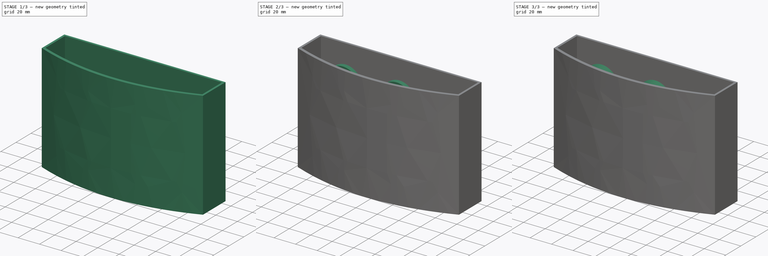
[diagram: build sequence overview — one tinted view per stage of 3, left to right]
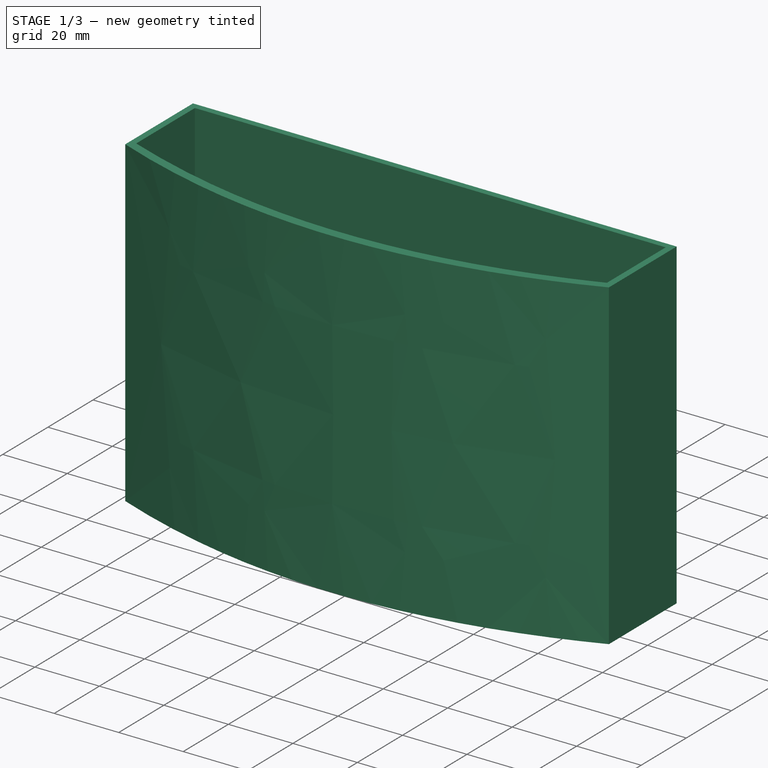
[diagram: stage 1 of 3 — iso view after this stage's code; geometry added in this stage tinted green]
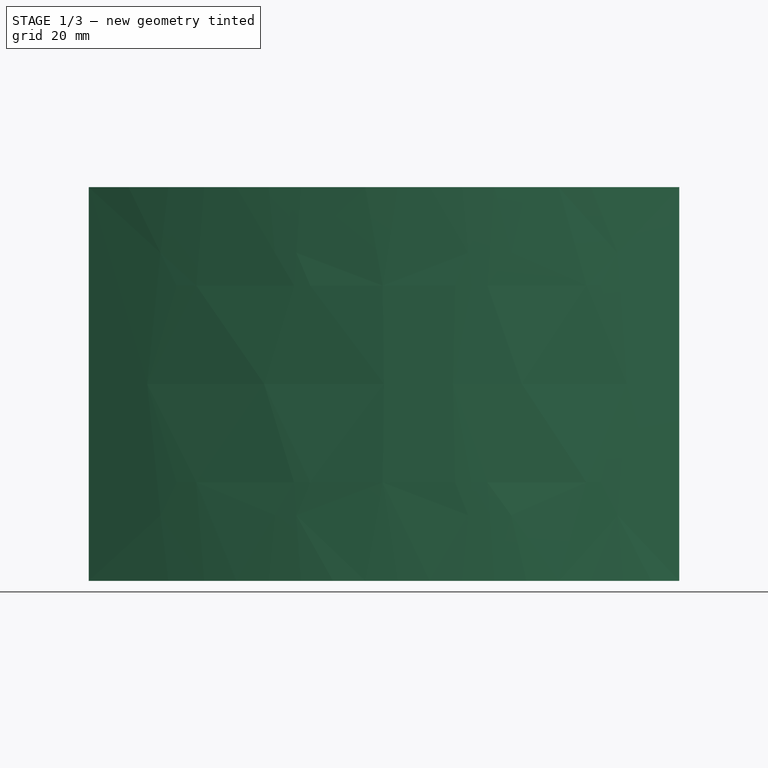
[diagram: stage 1 of 3 — front view after this stage's code; geometry added in this stage tinted green]
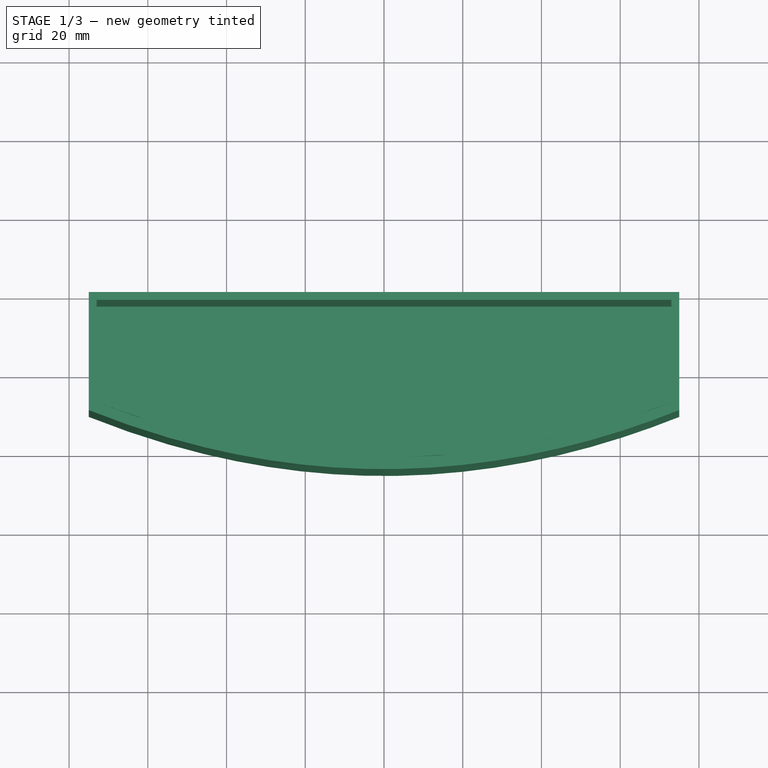
[diagram: stage 1 of 3 — top view after this stage's code; geometry added in this stage tinted green]
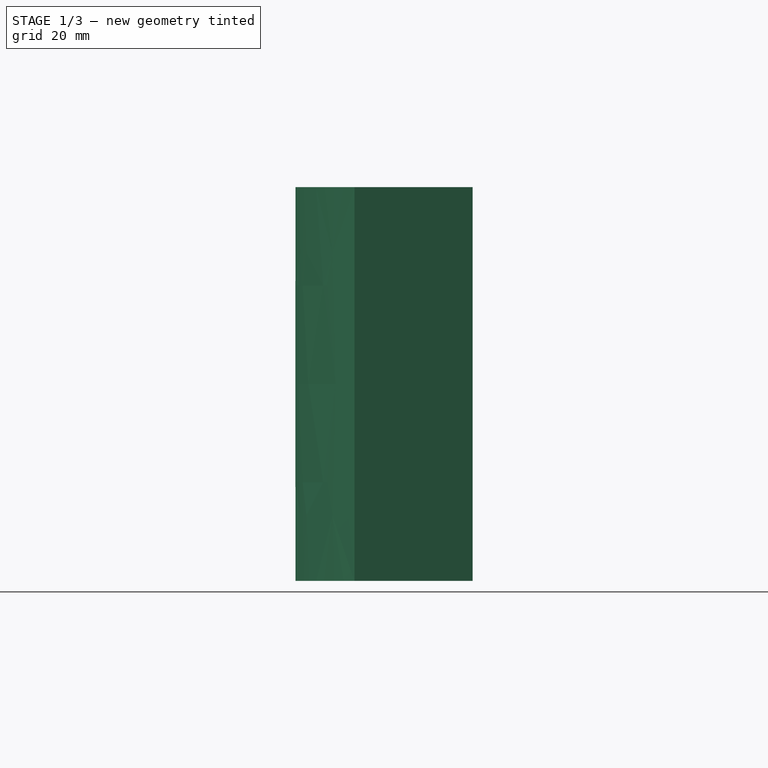
[diagram: stage 1 of 3 — right view after this stage's code; geometry added in this stage tinted green]
FCSTD DOCUMENT  (FreeCAD 2023.131R26244 +5365 (Git))
Label: Magnetic Sink Caddy
License: All rights reserved
LicenseURL: http://en.wikipedia.org/wiki/All_rights_reserved
objects: Sketcher::SketchObject×5, PartDesign::Pocket×3, PartDesign::Pad×2, Spreadsheet::Sheet×1, PartDesign::LinearPattern×1, PartDesign::Chamfer×1, PartDesign::Body×1
note: 32 computed .brp shape members not serialized (recipe doc carries the construction recipe); baked Part::Feature solids carry a one-line shape summary decoded from their .brp

FEATURE [Spreadsheet::Sheet] Spreadsheet  label="Parameters"
  PythonMode = false
  ShowCells = 0
  TreeRank = 1
  cells = A1=Overall Height; B1(Height)=100; A2=Overall Width; B2(Width)=150; A3=Side Wall Length; B3(Side_Length)=30; A4=Curve Focal Length; B4(Curve_Focal_Length)=60; A5=Wall Thickness; B5(Thickness)=2; A6=Bottom Hole Diameter; B6(Hole_Diameter)=4; A7=Magnet Diameter; B7(Magnet_Diameter)=15.5; A8=Magnet Thickness; B8(Magnet_Thickness)=2.2
FEATURE [Sketcher::SketchObject] Sketch  label="Body Sketch"
  ArcFitTolerance = 1e-06
  AttachmentSupport = -> [XY_Plane]
  ExternalBSplineMaxDegree = 5
  ExternalBSplineTolerance = 0.0001
  FullyConstrained = true
  InternalTolerance = 1e-06
  InvalidShape = false
  MakeInternals = false
  MapMode = 5
  Support = -> [XY_Plane]
  TreeRank = 12
  ValidateShape = true
  expr: Constraints[1] = <<Parameters>>.Width
  expr: Constraints[20] = <<Parameters>>.Curve_Focal_Length
  expr: Constraints[7] = <<Parameters>>.Side_Length
  sketch-geometry (9):
    g0: LineSegment StartX=-75 StartY=0 StartZ=0 EndX=75 EndY=0 EndZ=0
    g1: LineSegment StartX=-75 StartY=0 StartZ=0 EndX=-75 EndY=-30 EndZ=0
    g2: LineSegment StartX=75 StartY=0 StartZ=0 EndX=75 EndY=-30 EndZ=0
    g3: Circle [constr] CenterX=-75 CenterY=-30 CenterZ=0 NormalX=0 NormalY=0 NormalZ=1 AngleXU=0 Radius=1
    g4: Circle [constr] CenterX=0 CenterY=-60 CenterZ=0 NormalX=0 NormalY=0 NormalZ=1 AngleXU=0 Radius=1
    g5: Circle [constr] CenterX=75 CenterY=-30 CenterZ=0 NormalX=0 NormalY=0 NormalZ=1 AngleXU=0 Radius=1
    g6: BSplineCurve PolesCount=3 KnotsCount=2 Degree=2 IsPeriodic=0
    g7: GeomPoint [constr] X=-75 Y=-30 Z=0
    g8: GeomPoint [constr] X=75 Y=-30 Z=0
  constraints (21):
    c: PointOnObject(g0,g-1)
    c: Distance(g0) = 150
    c: Symmetric(g0,g0,g-1)
    c: Coincident(g1,g0)
    c: Vertical(g1)
    c: Coincident(g2,g0)
    c: Vertical(g2)
    c: Distance(g1) = 30
    c: Equal(g1,g2)
    c: Coincident(g6,g1)
    c: Weight(g3) = 1
    c: Equal(g3,g4)
    c: PointOnObject(g4,g-2)
    c: Equal(g3,g5)
    c: Coincident(g6,g2)
    c: InternalAlignment(g3,g6)
    c: InternalAlignment(g4,g6)
    c: InternalAlignment(g5,g6)
    c: InternalAlignment(g7,g6)
    c: InternalAlignment(g8,g6)
    c: DistanceY(g4,g-1) = 60
FEATURE [PartDesign::Pad] Pad  label="Body"
  AddSubType = 0
  AlongSketchNormal = false
  AutoTaperInnerAngle = true
  CheckUpToFaceLimits = true
  ClaimChildren = false
  Direction = (0,0,1)
  Fit = 0
  FitJoin = 0
  InnerFit = 0
  InnerFitJoin = 0
  InvalidShape = false
  Length = 100
  Length2 = 100
  Linearize = true
  NewSolid = false
  Profile = -> Sketch
  Suppress = false
  TaperInnerAngle = 0
  TaperInnerAngleRev = 0
  TreeRank = 13
  Type = 0
  ValidateShape = true
  _ProfileBasedVersion = 1
  expr: Length = <<Parameters>>.Height
FEATURE [Sketcher::SketchObject] Sketch001  label="Hollow Sketch"
  ArcFitTolerance = 1e-06
  AttachmentSupport = -> [Pad]
  ExternalBSplineMaxDegree = 5
  ExternalBSplineTolerance = 0.0001
  FullyConstrained = true
  InternalTolerance = 1e-06
  InvalidShape = false
  MakeInternals = false
  MapMode = 5
  Placement = pos=(0,0,100) rot=(0,0,1;0rad)
  Support = -> [Pad]
  TreeRank = 14
  ValidateShape = true
  expr: Constraints[0] = <<Parameters>>.Thickness
  expr: Constraints[1] = <<Parameters>>.Width - 2 * <<Parameters>>.Thickness
  expr: Constraints[20] = <<Parameters>>.Curve_Focal_Length - 2 * <<Parameters>>.Thickness
  expr: Constraints[8] = <<Parameters>>.Side_Length - 2 * <<Parameters>>.Thickness
  sketch-geometry (9):
    g0: LineSegment StartX=-73 StartY=-2 StartZ=0 EndX=73 EndY=-2 EndZ=0
    g1: LineSegment StartX=-73 StartY=-2 StartZ=0 EndX=-73 EndY=-28 EndZ=0
    g2: LineSegment StartX=73 StartY=-2 StartZ=0 EndX=73 EndY=-28 EndZ=0
    g3: Circle [constr] CenterX=-73 CenterY=-28 CenterZ=0 NormalX=0 NormalY=0 NormalZ=1 AngleXU=0 Radius=1
    g4: Circle [constr] CenterX=0 CenterY=-56 CenterZ=0 NormalX=0 NormalY=0 NormalZ=1 AngleXU=0 Radius=1
    g5: Circle [constr] CenterX=73 CenterY=-28 CenterZ=0 NormalX=0 NormalY=0 NormalZ=1 AngleXU=0 Radius=1
    g6: BSplineCurve PolesCount=3 KnotsCount=2 Degree=2 IsPeriodic=0
    g7: GeomPoint [constr] X=-73 Y=-28 Z=0
    g8: GeomPoint [constr] X=73 Y=-28 Z=0
  constraints (21):
    c: DistanceY(g0,g-1) = 2
    c: Distance(g0) = 146
    c: Symmetric(g0,g0,g-2)
    c: Coincident(g1,g0)
    c: Vertical(g1)
    c: Coincident(g2,g0)
    c: Vertical(g2)
    c: Equal(g1,g2)
    c: Distance(g1) = 26
    c: Coincident(g6,g1)
    c: Weight(g3) = 1
    c: Equal(g3,g4)
    c: PointOnObject(g4,g-2)
    c: Equal(g3,g5)
    c: Coincident(g6,g2)
    c: InternalAlignment(g3,g6)
    c: InternalAlignment(g4,g6)
    c: InternalAlignment(g5,g6)
    c: InternalAlignment(g7,g6)
    c: InternalAlignment(g8,g6)
    c: DistanceY(g4,g-1) = 56
FEATURE [PartDesign::Pocket] Pocket  label="Hollow"
  AddSubType = 1
  AutoTaperInnerAngle = true
  BaseFeature = -> Pad
  CheckUpToFaceLimits = true
  ClaimChildren = false
  Fit = 0
  FitJoin = 0
  InnerFit = 0
  InnerFitJoin = 0
  InvalidShape = false
  Length = 98
  Length2 = 100
  Linearize = true
  NewSolid = false
  Profile = -> Sketch001
  Suppress = false
  TaperInnerAngle = 0
  TaperInnerAngleRev = 0
  TreeRank = 15
  Type = 0
  ValidateShape = true
  _ProfileBasedVersion = 1
  _Version = 1
  expr: Length = <<Parameters>>.Height - <<Parameters>>.Thickness
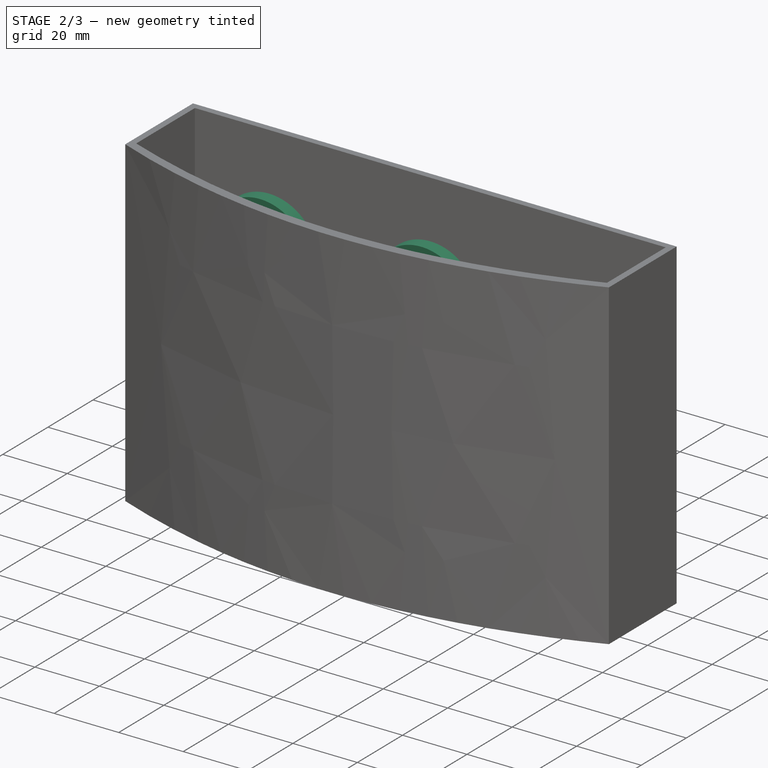
[diagram: stage 2 of 3 — iso view after this stage's code; geometry added in this stage tinted green]
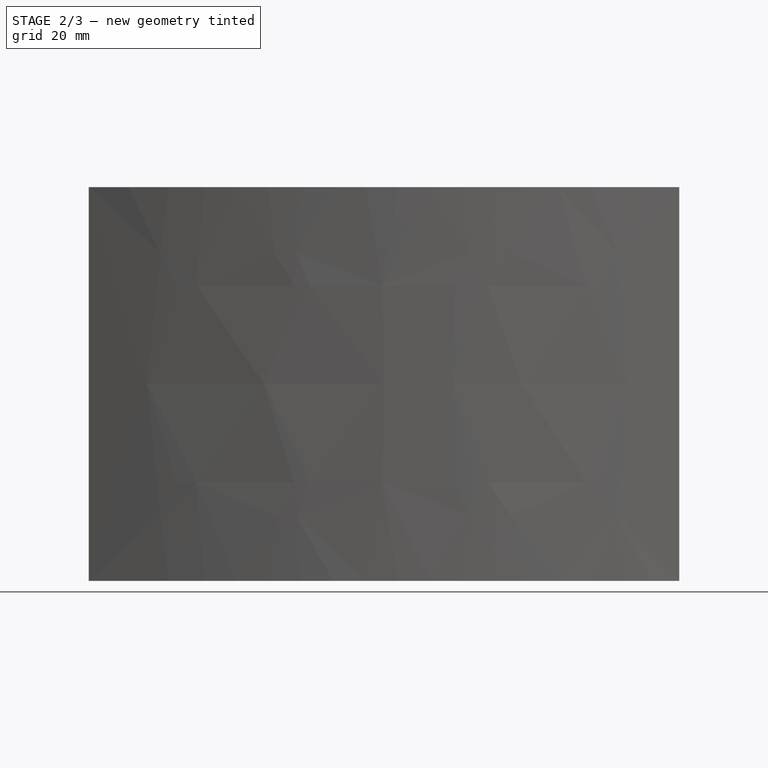
[diagram: stage 2 of 3 — front view after this stage's code; geometry added in this stage tinted green]
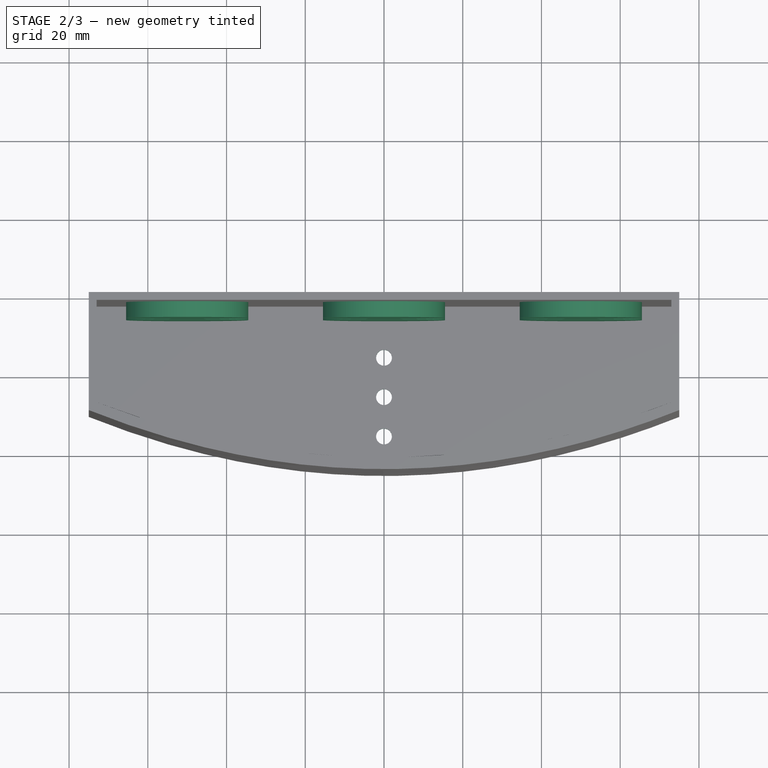
[diagram: stage 2 of 3 — top view after this stage's code; geometry added in this stage tinted green]
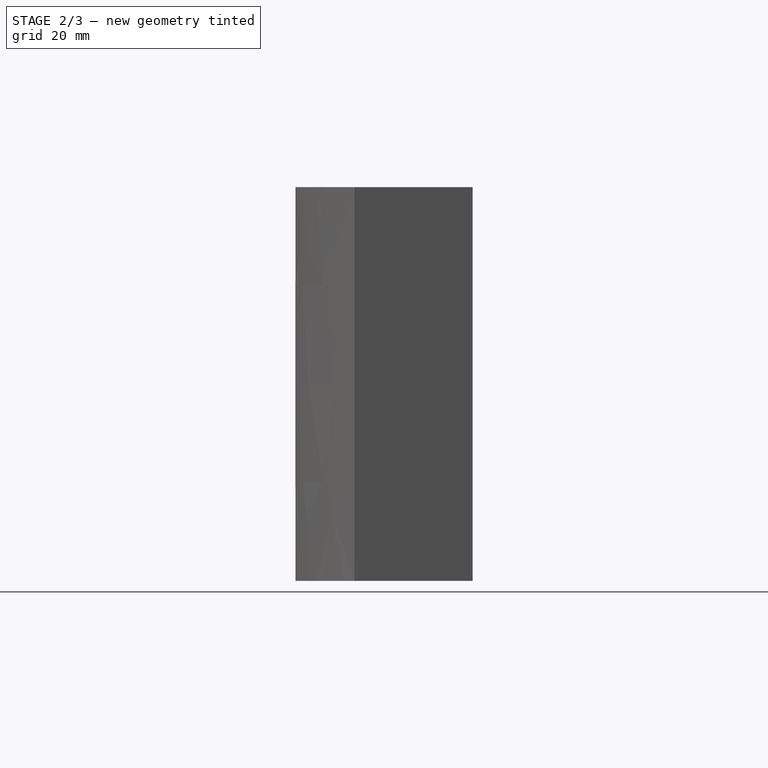
[diagram: stage 2 of 3 — right view after this stage's code; geometry added in this stage tinted green]
FEATURE [Sketcher::SketchObject] Sketch003  label="Magnet Supports Sketch"
  ArcFitTolerance = 1e-06
  ExternalBSplineMaxDegree = 5
  ExternalBSplineTolerance = 0.0001
  FullyConstrained = true
  InternalTolerance = 1e-06
  InvalidShape = false
  MakeInternals = false
  MapMode = 5
  Placement = pos=(0,-2,0) rot=(1,0,0;1.5708rad)
  TreeRank = 19
  ValidateShape = true
  expr: Constraints[10] = <<Parameters>>.Height / 3
  expr: Constraints[11] = <<Parameters>>.Height / 3
  expr: Constraints[12] = <<Parameters>>.Height / 3 * 2
  expr: Constraints[13] = <<Parameters>>.Height / 3 * 2
  expr: Constraints[14] = <<Parameters>>.Width / 3
  expr: Constraints[15] = <<Parameters>>.Width / 3
  expr: Constraints[16] = <<Parameters>>.Width / 3
  expr: Constraints[17] = <<Parameters>>.Width / 3
  expr: Constraints[1] = <<Parameters>>.Magnet_Diameter * 2
  expr: Constraints[8] = <<Parameters>>.Height / 3
  expr: Constraints[9] = <<Parameters>>.Height / 3 * 2
  sketch-geometry (6):
    g0: Circle CenterX=0 CenterY=66.6667 CenterZ=0 NormalX=0 NormalY=0 NormalZ=1 AngleXU=0 Radius=15.5
    g1: Circle CenterX=0 CenterY=33.3333 CenterZ=0 NormalX=0 NormalY=0 NormalZ=1 AngleXU=0 Radius=15.5
    g2: Circle CenterX=50 CenterY=33.3333 CenterZ=0 NormalX=0 NormalY=0 NormalZ=1 AngleXU=0 Radius=15.5
    g3: Circle CenterX=50 CenterY=66.6667 CenterZ=0 NormalX=0 NormalY=0 NormalZ=1 AngleXU=0 Radius=15.5
    g4: Circle CenterX=-50 CenterY=66.6667 CenterZ=0 NormalX=0 NormalY=0 NormalZ=1 AngleXU=0 Radius=15.5
    g5: Circle CenterX=-50 CenterY=33.3333 CenterZ=0 NormalX=0 NormalY=0 NormalZ=1 AngleXU=0 Radius=15.5
  constraints (18):
    c: PointOnObject(g0,g-2)
    c: Diameter(g0) = 31
    c: PointOnObject(g1,g-2)
    c: Equal(g0,g3)
    c: Equal(g0,g2)
    c: Equal(g0,g1)
    c: Equal(g0,g5)
    c: Equal(g0,g4)
    c: DistanceY(g-1,g1) = 33.3333
    c: DistanceY(g-1,g0) = 66.6667
    c: DistanceY(g-1,g5) = 33.3333
    c: DistanceY(g-1,g2) = 33.3333
    c: DistanceY(g-1,g4) = 66.6667
    c: DistanceY(g-1,g3) = 66.6667
    c: DistanceX(g5,g-1) = 50
    c: DistanceX(g-1,g2) = 50
    c: DistanceX(g4,g-1) = 50
    c: DistanceX(g-1,g3) = 50
FEATURE [PartDesign::Pad] Pad001  label="Magnet Supports"
  AddSubType = 0
  AlongSketchNormal = false
  AutoTaperInnerAngle = true
  BaseFeature = -> Pocket
  CheckUpToFaceLimits = true
  ClaimChildren = false
  Direction = (0,-1,0)
  Fit = 0
  FitJoin = 0
  InnerFit = 0
  InnerFitJoin = 0
  InvalidShape = false
  Length = 4
  Length2 = 100
  Linearize = true
  NewSolid = false
  Profile = -> Sketch003
  Suppress = false
  TaperInnerAngle = 0
  TaperInnerAngleRev = 0
  TreeRank = 20
  Type = 0
  ValidateShape = true
  _ProfileBasedVersion = 1
FEATURE [Sketcher::SketchObject] Sketch004  label="Magnet Holes Sketch"
  ArcFitTolerance = 1e-06
  ExternalBSplineMaxDegree = 5
  ExternalBSplineTolerance = 0.0001
  FullyConstrained = true
  InternalTolerance = 1e-06
  InvalidShape = false
  MakeInternals = false
  MapMode = 5
  Placement = pos=(0,0,0) rot=(0,0.707107,0.707107;3.14159rad)
  TreeRank = 22
  ValidateShape = true
  expr: Constraints[10] = <<Parameters>>.Width / 3
  expr: Constraints[11] = <<Parameters>>.Width / 3
  expr: Constraints[12] = <<Parameters>>.Height / 3
  expr: Constraints[13] = <<Parameters>>.Height / 3
  expr: Constraints[14] = <<Parameters>>.Height / 3
  expr: Constraints[15] = <<Parameters>>.Height / 3 * 2
  expr: Constraints[16] = <<Parameters>>.Height / 3 * 2
  expr: Constraints[17] = <<Parameters>>.Height / 3 * 2
  expr: Constraints[2] = <<Parameters>>.Magnet_Diameter
  expr: Constraints[8] = <<Parameters>>.Width / 3
  expr: Constraints[9] = <<Parameters>>.Width / 3
  sketch-geometry (6):
    g0: Circle CenterX=0 CenterY=33.3333 CenterZ=0 NormalX=0 NormalY=0 NormalZ=1 AngleXU=0 Radius=7.75
    g1: Circle CenterX=0 CenterY=66.6667 CenterZ=0 NormalX=0 NormalY=0 NormalZ=1 AngleXU=0 Radius=7.75
    g2: Circle CenterX=50 CenterY=33.3333 CenterZ=0 NormalX=0 NormalY=0 NormalZ=1 AngleXU=0 Radius=7.75
    g3: Circle CenterX=50 CenterY=66.6667 CenterZ=0 NormalX=0 NormalY=0 NormalZ=1 AngleXU=0 Radius=7.75
    g4: Circle CenterX=-50 CenterY=66.6667 CenterZ=0 NormalX=0 NormalY=0 NormalZ=1 AngleXU=0 Radius=7.75
    g5: Circle CenterX=-50 CenterY=33.3333 CenterZ=0 NormalX=0 NormalY=0 NormalZ=1 AngleXU=0 Radius=7.75
  constraints (18):
    c: PointOnObject(g0,g-2)
    c: PointOnObject(g1,g-2)
    c: Diameter(g1) = 15.5
    c: Equal(g1,g3)
    c: Equal(g1,g2)
    c: Equal(g1,g0)
    c: Equal(g1,g5)
    c: Equal(g1,g4)
    c: DistanceX(g-1,g2) = 50
    c: DistanceX(g-1,g3) = 50
    c: DistanceX(g4,g-1) = 50
    c: DistanceX(g5,g-1) = 50
    c: DistanceY(g-1,g0) = 33.3333
    c: DistanceY(g-1,g2) = 33.3333
    c: DistanceY(g-1,g5) = 33.3333
    c: DistanceY(g-1,g4) = 66.6667
    c: DistanceY(g-1,g1) = 66.6667
    c: DistanceY(g-1,g3) = 66.6667
FEATURE [PartDesign::Pocket] Pocket002  label="Magnet Holes"
  AddSubType = 1
  AutoTaperInnerAngle = true
  BaseFeature = -> Pad001
  CheckUpToFaceLimits = true
  ClaimChildren = false
  Fit = 0
  FitJoin = 0
  InnerFit = 0
  InnerFitJoin = 0
  InvalidShape = false
  Length = 2.2
  Length2 = 100
  Linearize = true
  NewSolid = false
  Profile = -> Sketch004
  Suppress = false
  TaperInnerAngle = 0
  TaperInnerAngleRev = 0
  TreeRank = 23
  Type = 0
  ValidateShape = true
  _ProfileBasedVersion = 1
  _Version = 1
  expr: Length = <<Parameters>>.Magnet_Thickness
FEATURE [Sketcher::SketchObject] Sketch005  label="Holes Sketch"
  ArcFitTolerance = 1e-06
  ExternalBSplineMaxDegree = 5
  ExternalBSplineTolerance = 0.0001
  FullyConstrained = false
  InternalTolerance = 1e-06
  InvalidShape = false
  MakeInternals = false
  MapMode = 5
  Placement = pos=(0,0,2) rot=(0,0,1;0rad)
  TreeRank = 25
  ValidateShape = true
  expr: Constraints[14] = <<Parameters>>.Thickness
  expr: Constraints[3] = <<Parameters>>.Hole_Diameter
  sketch-geometry (5):
    g0: Circle CenterX=0 CenterY=-35 CenterZ=0 NormalX=0 NormalY=0 NormalZ=1 AngleXU=0 Radius=2
    g1: Circle CenterX=0 CenterY=-25 CenterZ=0 NormalX=0 NormalY=0 NormalZ=1 AngleXU=0 Radius=2
    g2: Circle CenterX=0 CenterY=-15 CenterZ=0 NormalX=0 NormalY=0 NormalZ=1 AngleXU=0 Radius=2
    g3: ArcOfCircle CenterX=0 CenterY=-2.55846 CenterZ=0 NormalX=0 NormalY=0 NormalZ=1 AngleXU=0 Radius=2 StartAngle=2.8586 EndAngle=6.56618
    g4: LineSegment StartX=-1.92045 StartY=-2 StartZ=0 EndX=1.92045 EndY=-2 EndZ=0
  constraints (15):
    c: PointOnObject(g0,g-2)
    c: PointOnObject(g1,g-2)
    c: PointOnObject(g2,g-2)
    c: Diameter(g0) = 4
    c: Equal(g0,g1)
    c: Equal(g0,g2)
    c: DistanceY(g1,g-1) = 25
    c: DistanceY(g2,g-1) = 15
    c: DistanceY(g0,g-1) = 35
    c: PointOnObject(g3,g-2)
    c: Equal(g2,g3)
    c: Horizontal(g4)
    c: Coincident(g3,g4)
    c: Coincident(g3,g4)
    c: DistanceY(g3,g-1) = 2
FEATURE [PartDesign::Pocket] Pocket003  label="Holes"
  AddSubType = 1
  AutoTaperInnerAngle = true
  BaseFeature = -> Pocket002
  CheckUpToFaceLimits = true
  ClaimChildren = false
  Fit = 0
  FitJoin = 0
  InnerFit = 0
  InnerFitJoin = 0
  InvalidShape = false
  Length = 5
  Length2 = 100
  Linearize = true
  NewSolid = false
  Profile = -> Sketch005
  Suppress = false
  TaperInnerAngle = 0
  TaperInnerAngleRev = 0
  TreeRank = 26
  Type = 1
  ValidateShape = true
  _ProfileBasedVersion = 1
  _Version = 1
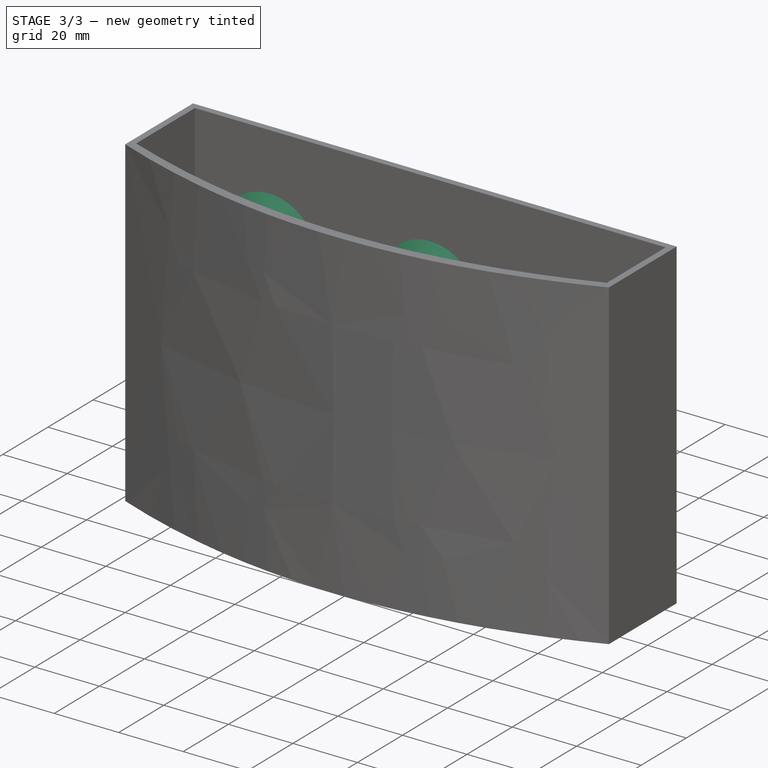
[diagram: stage 3 of 3 — iso view after this stage's code; geometry added in this stage tinted green]
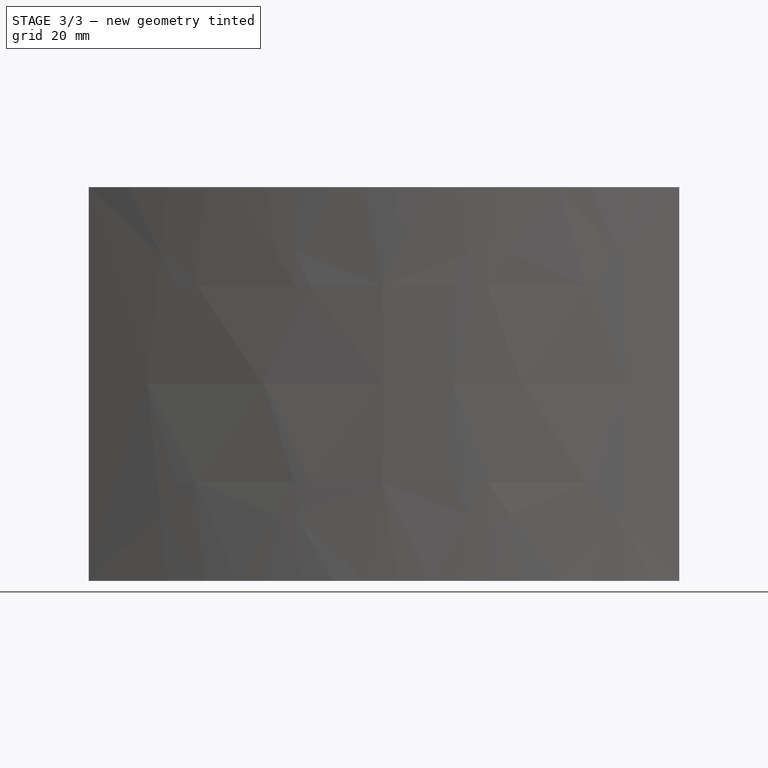
[diagram: stage 3 of 3 — front view after this stage's code; geometry added in this stage tinted green]
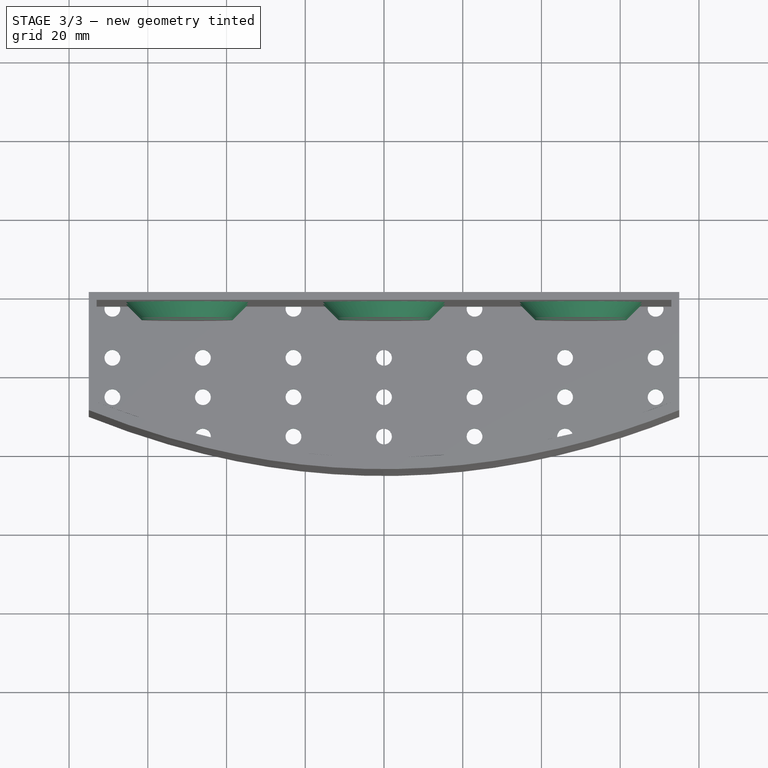
[diagram: stage 3 of 3 — top view after this stage's code; geometry added in this stage tinted green]
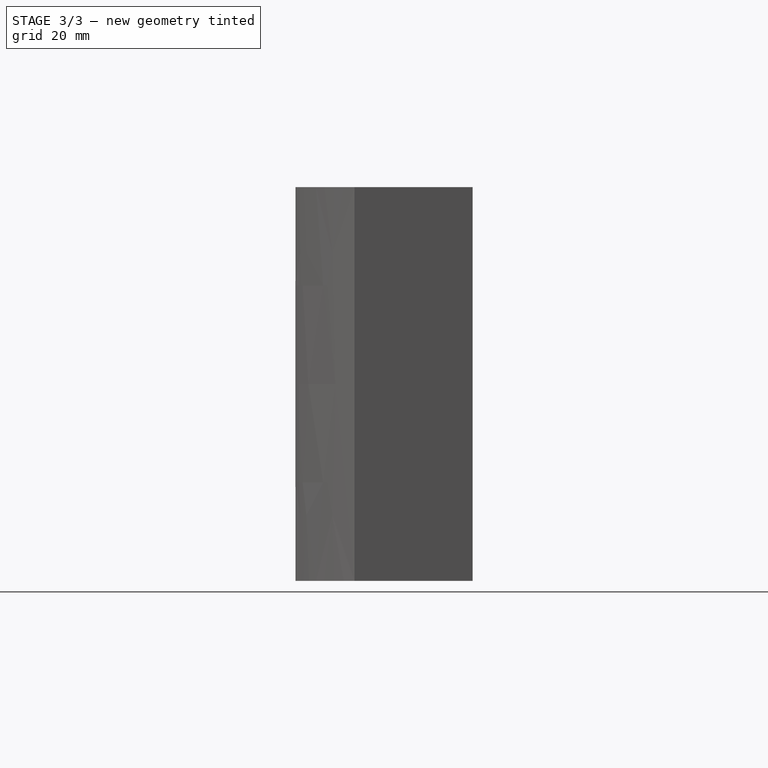
[diagram: stage 3 of 3 — right view after this stage's code; geometry added in this stage tinted green]
FEATURE [PartDesign::LinearPattern] LinearPattern
  AddSubType = 0
  BaseFeature = -> Pocket003
  CopyShape = false
  Direction = -> X_Axis
  InvalidShape = false
  Length = 138
  NewSolid = false
  Occurrences = 7
  ParallelTransform = true
  SubTransform = true
  Suppress = false
  TransformOffset = pos=(-69,0,0) rot=(0,0,1;0rad)
  TreeRank = 27
  ValidateShape = true
  _Version = 3
  expr: TransformOffset.Base.x = -(<<Parameters>>.Width / 2 - <<Parameters>>.Thickness - <<Parameters>>.Hole_Diameter)
  expr: Length = <<Parameters>>.Width - 2 * <<Parameters>>.Thickness - 2 * <<Parameters>>.Hole_Diameter
FEATURE [PartDesign::Chamfer] Chamfer
  AddSubType = 0
  Angle = 45
  Base = -> LinearPattern [Face68,Face69,Face70,Face67,Face66,Face65]
  BaseFeature = -> LinearPattern
  ChamferType = 0
  FlipDirection = false
  InvalidShape = false
  NewSolid = false
  Size = 3.99
  Size2 = 1
  SupportTransform = false
  Suppress = false
  TreeRank = 28
  ValidateShape = true
FEATURE [PartDesign::Body] Body  label="Caddy"
  AutoGroupSolids = false
  ClaimAllChildren = false
  ExportMode = 0
  Group = -> [Sketch,Pad,Sketch001,Pocket,Sketch003,Pad001,Sketch004,Pocket002,Sketch005,Pocket003,LinearPattern,Chamfer]
  InvalidShape = false
  Origin = -> Origin
  Tip = -> Chamfer
  TreeRank = 11
  ValidateShape = true
  _ExportChildren = -> [Pad,Pocket,Pad001,Pocket002,Pocket003,LinearPattern,Chamfer]
  _GroupVersion = 1
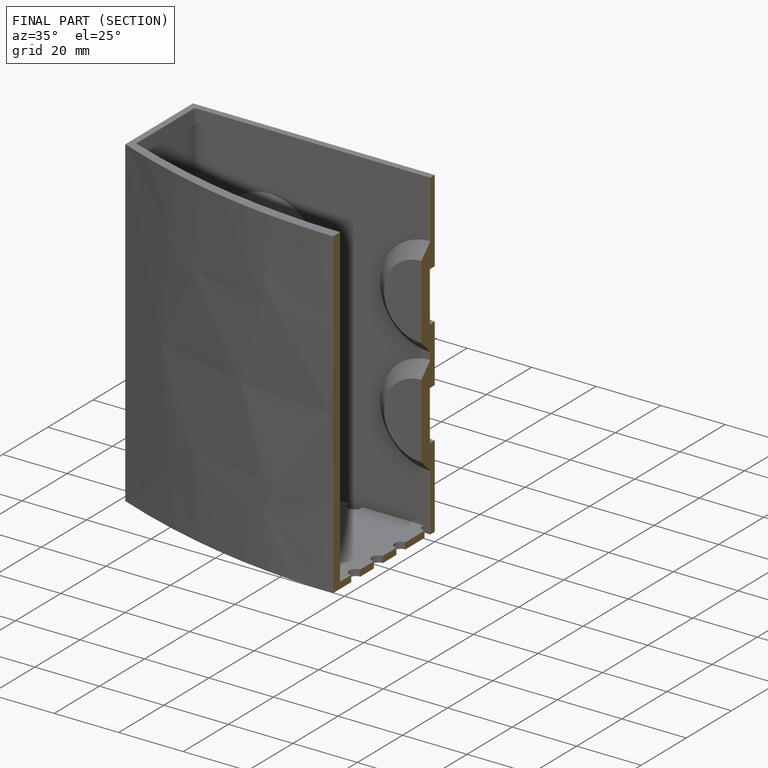
[diagram: finished part — half-section view (interior)]
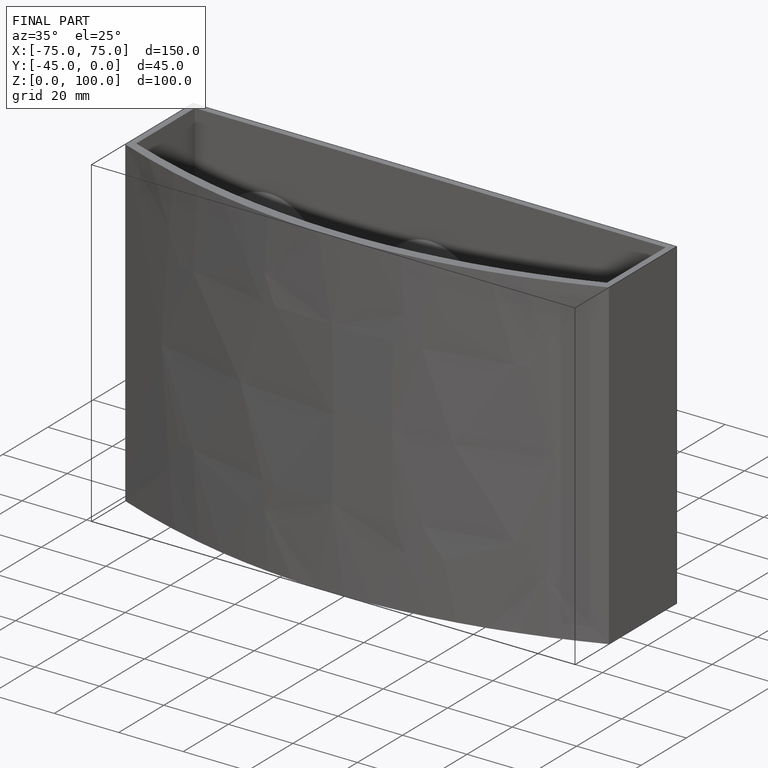
[diagram: finished part — iso view with bounding-box wireframe]
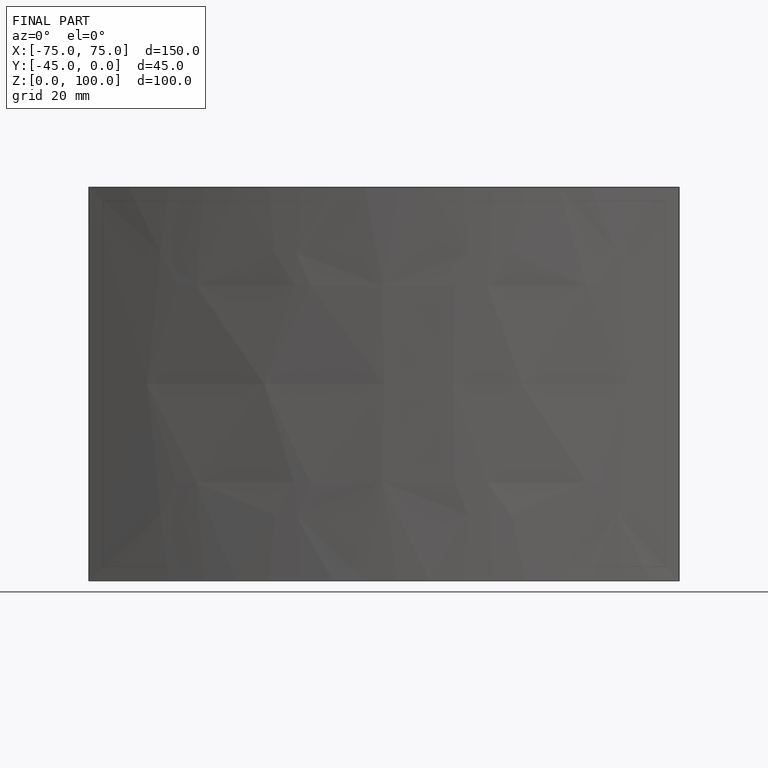
[diagram: finished part — front view with bounding-box wireframe]
